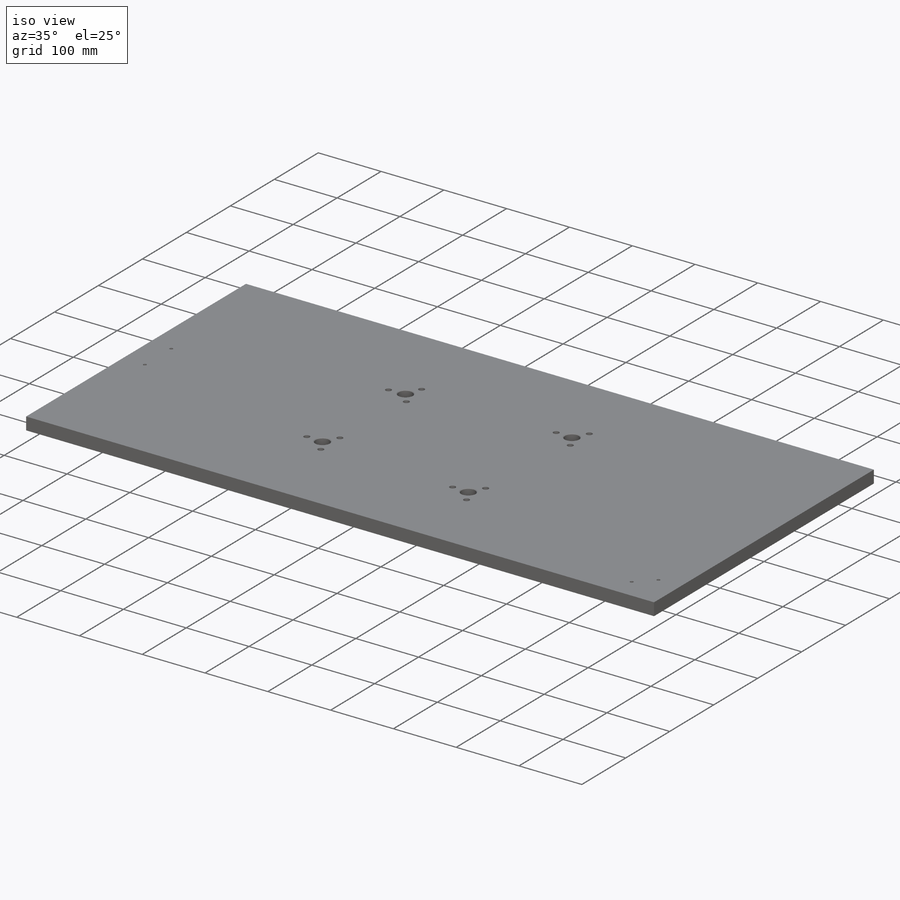
[diagram: iso view]
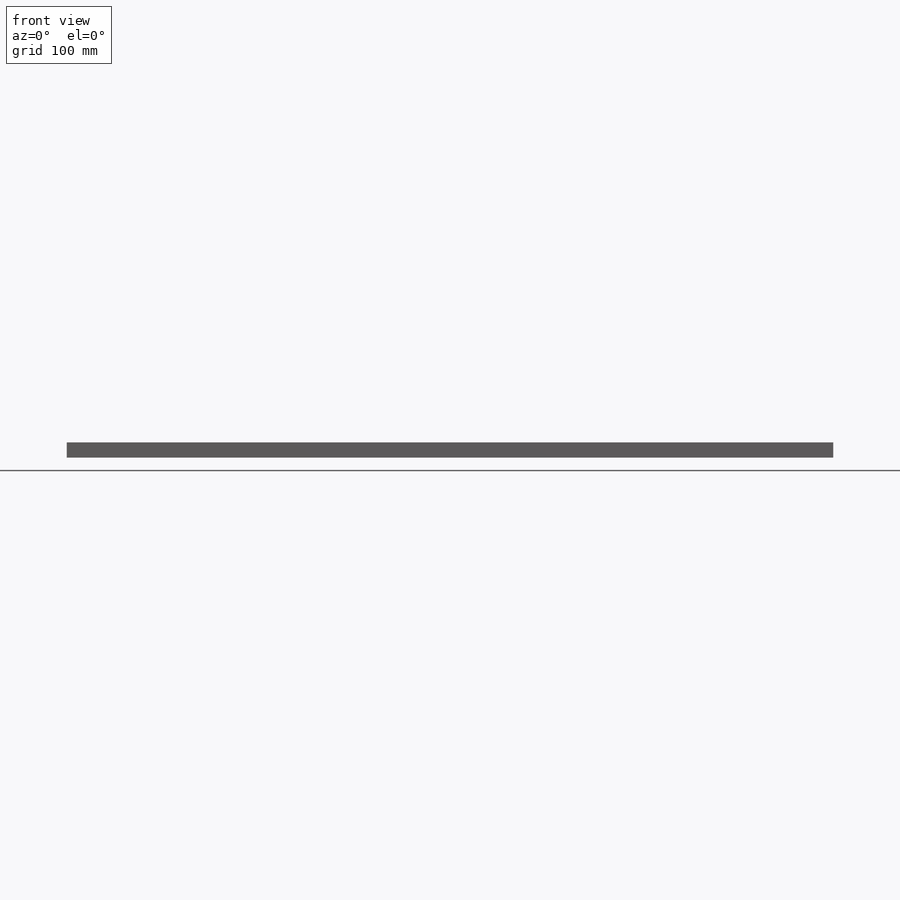
[diagram: front view]
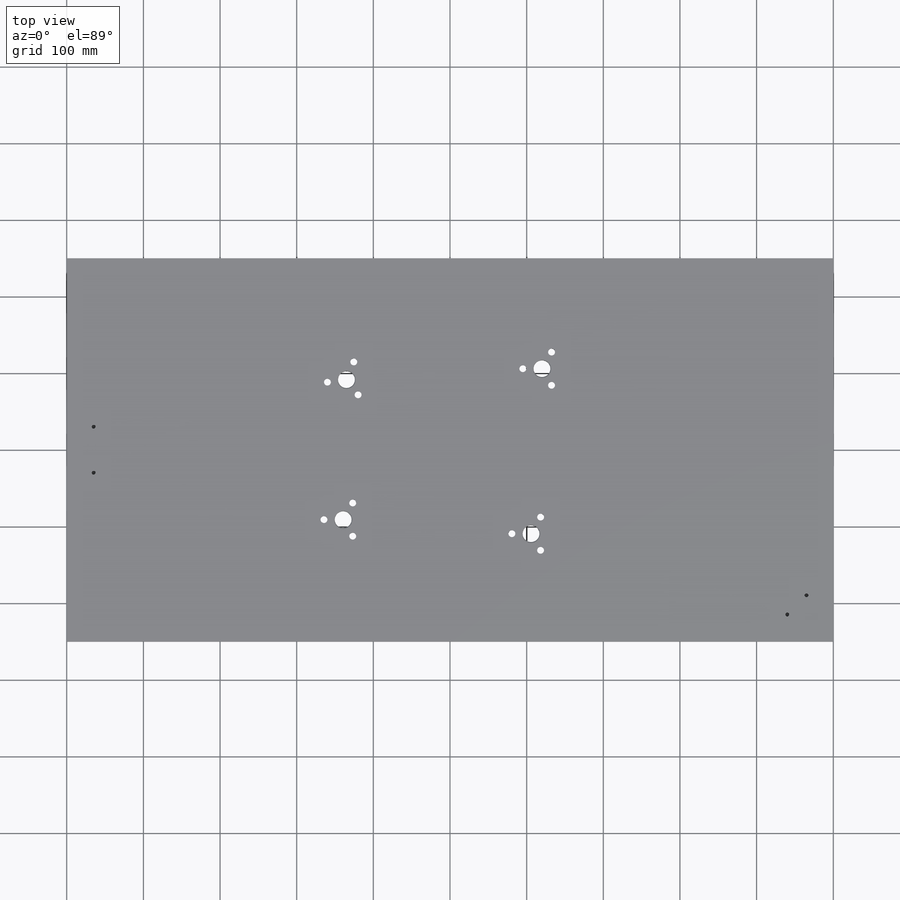
[diagram: top view]
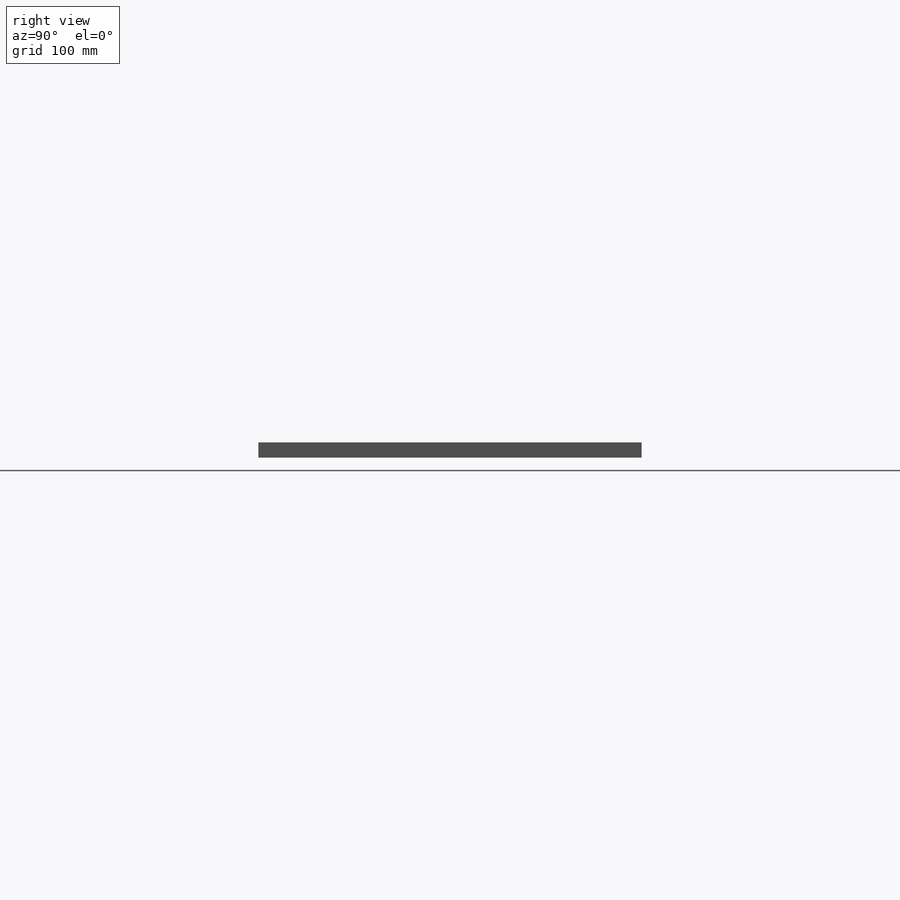
[diagram: right view]
SOLIDWORKS PART (.sldprt)
format: sldprt  version: not decoded by parser v0  size: 818,176 bytes
history: native  units: mm
features: sketch x21, chamfer x8, hole x5, thread x4, plane x3, extrude x2, pattern_circular x2, material x1, cut_extrude x1 + 8 further entries (+11 scaffold rows collapsed)
feature tree (66):
  scaffold x11  (default folders/planes/origin — collapsed)
  material  "AlZnMgCu0,5 F43 (3.4345)"
  plane  "Vorne"
  plane  "Oben"
  plane  "Rechts"
  sketch  "Skizze1"  dims[c1.D1=100.0mm c1.D2=1000.0mm c1.D3=700.0mm c1.D4=315.0mm c1.D5=~61.759618mm c2.D5=45.0deg c2.D6=450.0mm c2.D7=720.0mm c2.D3=250.0mm c2.D1=500.0mm]
  extrude  "Basis-Linear austragen"  Depth=20mm
  sketch  "Skizze81"  dims[c1.D4=22.0mm c1.D6=22.0mm c1.D1=180.0mm c1.D2=491.3mm c1.D3=260.0mm c1.D5=154.0mm c2.D6=431.3mm c2.D7=168.3mm c2.D8=176.2mm c2.D9=350.9mm c2.D10=171.9mm c2.D11=417.0mm c2.D12=369.3mm]
  cut_extrude  "Schnitt-Linear austragen9"  Depth=5mm
  hole  "Passbohrung Ø22.0 #1"  Diameter=22mm Depth=20mm
  sketch  "Skizze41"  dims[c1.D1=8.4mm c1.D2=178.5mm c1.D3=51.2mm c1.D4=136.5mm c1.D5=113.0mm c1.D6=88.5mm c2.D1=8.4mm c2.D3=~91.130937mm c2.D4=~38.60405mm c3.D1=~206.700146mm c3.D2=~109.300267mm c3.D5=~91.699733mm c3.D6=~34.099854mm c4.D1=~146.700146mm c4.D2=~98.60405mm c4.D3=~94.099854mm c4.D4=~109.300267mm c4.D5=~96.130937mm c4.D6=~91.699733mm c4.D7=~110.999719mm c4.D8=~161.000154mm]
  sketch  "Skizze40"  dims[hole-wizard template sketch: 59 standard entries collapsed; hole parameters kept: c18.Bohrerdurchmesser=22.0mm c18.Bohrungstiefe=20.0mm]
  hole  "Flachsenkung DIN974-1-8 #1"  Diameter=9mm Depth=20.001mm
  sketch  "Skizze48"  dims[c1.D1=25.0mm c1.D2=~14.926313mm c2.D2=120.0deg]
  sketch  "Skizze47"  dims[hole-wizard template sketch: 41 standard entries collapsed; hole parameters kept: c12.Bohrerdurchmesser=9.0mm c12.Bohrungstiefe=20.001mm c12.Senkdurchmesser2=15.0mm c12.Senktiefe2=9.5mm]
  pattern_circular  "Kreismuster2"  Count=3 Angle=360deg
  sketch  "Skizze86"
  "Skizzen-Muster1"
  hole  "Flachsenkung DIN974-1-8 #3"  Diameter=9mm Depth=20.001mm
  sketch  "Skizze88"  dims[c1.D1=25.0mm c1.D2=25.0mm c1.D3=25.0mm c2.D3=22.5deg]
  sketch  "Skizze87"  dims[hole-wizard template sketch: 41 standard entries collapsed; hole parameters kept: c12.Bohrerdurchmesser=9.0mm c12.Bohrungstiefe=20.001mm c12.Senkdurchmesser2=15.0mm c12.Senktiefe2=9.5mm]
  pattern_circular  "Kreismuster3"  Count=3 Angle=120deg
  chamfer  "Fase4"  Distance=1mm Angle=45deg
  hole  "Bohrung für M6 Ensat S #1"  Diameter=8.9mm Depth=17mm
  sketch  "Skizze90"  dims[c1.D1=60.0mm c1.D2=35.0mm c1.D3=35.0mm c1.D4=35.0mm c1.D5=60.0mm c1.D6=60.0mm c2.D4=60.0mm c2.D5=35.0mm]
  sketch  "Skizze89"  dims[hole-wizard template sketch: 46 standard entries collapsed; hole parameters kept: c15.Bohrerdurchmesser=8.9mm c15.Bohrungstiefe=17.0mm c15.D3=~14.816244mm c15.Spitzenwinkel=118.0deg]
  sketch  "Skizze11"  dims[c1.s=11.0mm c1.dk=5.0mm c1.E=10.0mm c2.dk=10.25mm c2.D3=3.0mm c2.A=3.0mm c2.DK=5.0mm]
  extrude  "Kerbkonus"  [1 undecoded]
  thread  "Gewindedarstellung1"  Diameter=6mm A=6mm  [1 undecoded]
  "Schneidschlitz"
  sketch  "Skizze2"  dims[SB=3.0mm SL=7.0mm]
  chamfer  "Gewindedarstellung2"  Distance=9.25mm DK=9.25mm B=14mm
  sketch  "Skizze12"  dims[c1.s=11.0mm c1.dk=5.0mm c1.E=10.0mm c2.dk=10.25mm c2.D3=3.0mm c2.A=3.0mm c2.DK=5.0mm]
  "Kerbkonus1"
  chamfer  "Gewindedarstellung3"  Distance=6mm A=6mm
  "Schneidschlitz1"
  sketch  "Skizze28"  dims[SB=3.0mm SL=7.0mm]
  chamfer  "Gewindedarstellung4"  Distance=9.25mm DK=9.25mm B=14mm
  thread  "Gewindeeinsatz Ensat S<2>"  [2 undecoded]
  hole  "Bohrung für M6 Ensat S #2"  Diameter=8.9mm Depth=17mm
  sketch  "Skizze104"  dims[D1=35.0mm D2=60.0mm D3=60.0mm D4=35.0mm]
  sketch  "Skizze103"  dims[hole-wizard template sketch: 46 standard entries collapsed; hole parameters kept: c15.Bohrerdurchmesser=8.9mm c15.Bohrungstiefe=17.0mm c15.D3=~14.816244mm c15.Spitzenwinkel=118.0deg]
  sketch  "Skizze16"  dims[c1.s=11.0mm c1.dk=5.0mm c1.E=10.0mm c2.dk=10.25mm c2.D3=3.0mm c2.A=3.0mm c2.DK=5.0mm]
  "Kerbkonus2"
  chamfer  "Gewindedarstellung5"  Distance=6mm A=6mm
  "Schneidschlitz2"
  sketch  "Skizze29"  dims[SB=3.0mm SL=7.0mm]
  chamfer  "Gewindedarstellung6"  Distance=9.25mm DK=9.25mm B=14mm
  thread  "Gewindeeinsatz Ensat S<3>"  [2 undecoded]
  sketch  "Skizze17"  dims[c1.s=11.0mm c1.dk=5.0mm c1.E=10.0mm c2.dk=10.25mm c2.D3=3.0mm c2.A=3.0mm c2.DK=5.0mm]
  "Kerbkonus3"
  chamfer  "Gewindedarstellung7"  Distance=6mm A=6mm
  "Schneidschlitz3"
  sketch  "Skizze210"  dims[SB=3.0mm SL=7.0mm]
  chamfer  "Gewindedarstellung8"  Distance=9.25mm DK=9.25mm B=14mm
  thread  "Gewindeeinsatz Ensat S<4>"  [2 undecoded]
decode coverage: 38 of 43 modeling features carry decoded parameters; 8 rows unclassified (native names shown)
note: ~ marks probable driven/reference dimensions
note: 8 parameter values undecoded
summary: no parameter record found for 4 features; Diameter pulled from absorbed wizard sketch
note: suppression state not decoded; provenance and decode notes live in map.json
